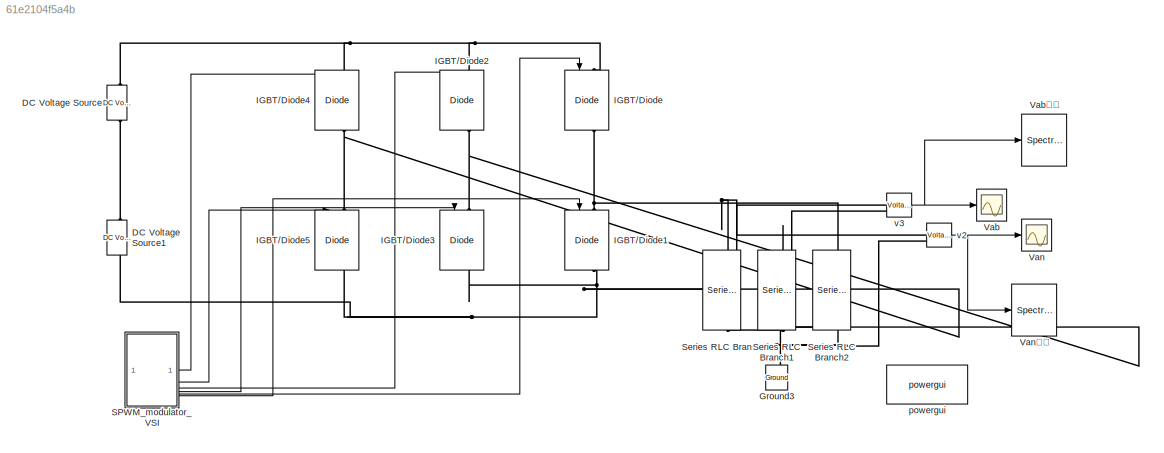
MODEL slx_61e2104f5a4b
KIND model
CONFIG AbsTol = auto
CONFIG EnableMultiTasking = off
CONFIG FixedStep = 2.5e-5
CONFIG MaxStep = auto
CONFIG MinStep = auto
CONFIG RelTol = 1e-3
CONFIG SampleTimeConstraint = Unconstrained
CONFIG SolverName = FixedStepAuto
CONFIG StartTime = 0.0
CONFIG StopTime = 0.5
BLOCK [Reference] DC Voltage Source  REF=spsDCVoltageSourceLib/DC Voltage Source
  LibrarySourceBlock = sps_lib/Sources/DC Voltage Source
  SourceBlock = spsDCVoltageSourceLib/DC Voltage Source
  SourceType = DC Voltage Source
BLOCK [Reference] DC Voltage Source1  REF=spsDCVoltageSourceLib/DC Voltage Source
  LibrarySourceBlock = sps_lib/Sources/DC Voltage Source
  SourceBlock = spsDCVoltageSourceLib/DC Voltage Source
  SourceType = DC Voltage Source
BLOCK [Reference] Ground3  REF=spsGroundLib/Ground
  LibrarySourceBlock = sps_lib/Utilities/Ground
  NameLocation = right
  SourceBlock = spsGroundLib/Ground
  SourceType = Ground
BLOCK [Reference] IGBT//Diode  REF=spsIGBTDiodeLib/IGBT//Diode
  LibrarySourceBlock = sps_lib/Power Electronics/IGBT//Diode
  NameLocation = right
  SourceBlock = spsIGBTDiodeLib/IGBT//Diode
  SourceType = IGBT/Diode
BLOCK [Reference] IGBT//Diode1  REF=spsIGBTDiodeLib/IGBT//Diode
  LibrarySourceBlock = sps_lib/Power Electronics/IGBT//Diode
  NameLocation = right
  SourceBlock = spsIGBTDiodeLib/IGBT//Diode
  SourceType = IGBT/Diode
BLOCK [Reference] IGBT//Diode2  REF=spsIGBTDiodeLib/IGBT//Diode
  LibrarySourceBlock = sps_lib/Power Electronics/IGBT//Diode
  NameLocation = right
  SourceBlock = spsIGBTDiodeLib/IGBT//Diode
  SourceType = IGBT/Diode
BLOCK [Reference] IGBT//Diode3  REF=spsIGBTDiodeLib/IGBT//Diode
  LibrarySourceBlock = sps_lib/Power Electronics/IGBT//Diode
  NameLocation = right
  SourceBlock = spsIGBTDiodeLib/IGBT//Diode
  SourceType = IGBT/Diode
BLOCK [Reference] IGBT//Diode4  REF=spsIGBTDiodeLib/IGBT//Diode
  LibrarySourceBlock = sps_lib/Power Electronics/IGBT//Diode
  NameLocation = right
  SourceBlock = spsIGBTDiodeLib/IGBT//Diode
  SourceType = IGBT/Diode
BLOCK [Reference] IGBT//Diode5  REF=spsIGBTDiodeLib/IGBT//Diode
  LibrarySourceBlock = sps_lib/Power Electronics/IGBT//Diode
  NameLocation = right
  SourceBlock = spsIGBTDiodeLib/IGBT//Diode
  SourceType = IGBT/Diode
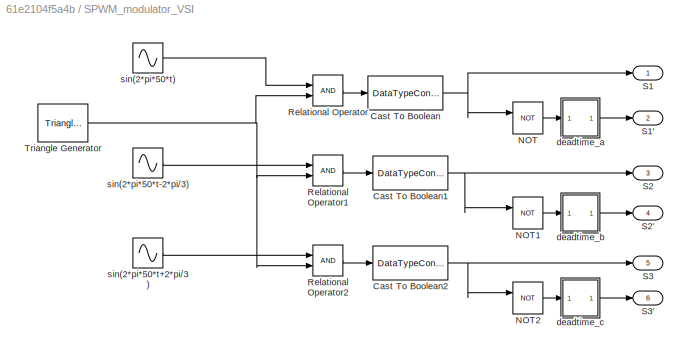
BLOCK [SubSystem] SPWM_modulator_VSI
BLOCK [DataTypeConversion] SPWM_modulator_VSI/Cast To Boolean
  OutDataTypeStr = boolean
  RndMeth = Floor
  SaturateOnIntegerOverflow = off
BLOCK [DataTypeConversion] SPWM_modulator_VSI/Cast To Boolean1
  OutDataTypeStr = boolean
  RndMeth = Floor
  SaturateOnIntegerOverflow = off
BLOCK [DataTypeConversion] SPWM_modulator_VSI/Cast To Boolean2
  OutDataTypeStr = boolean
  RndMeth = Floor
  SaturateOnIntegerOverflow = off
BLOCK [Logic] SPWM_modulator_VSI/NOT
  AllPortsSameDT = off
  IconShape = distinctive
  Operator = NOT
  OutDataTypeStr = boolean
BLOCK [Logic] SPWM_modulator_VSI/NOT1
  AllPortsSameDT = off
  IconShape = distinctive
  Operator = NOT
  OutDataTypeStr = boolean
BLOCK [Logic] SPWM_modulator_VSI/NOT2
  AllPortsSameDT = off
  IconShape = distinctive
  Operator = NOT
  OutDataTypeStr = boolean
BLOCK [RelationalOperator] SPWM_modulator_VSI/Relational Operator
  InputSameDT = off
  OutDataTypeStr = boolean
  RndMeth = Simplest
BLOCK [RelationalOperator] SPWM_modulator_VSI/Relational Operator1
  InputSameDT = off
  OutDataTypeStr = boolean
  RndMeth = Simplest
BLOCK [RelationalOperator] SPWM_modulator_VSI/Relational Operator2
  InputSameDT = off
  OutDataTypeStr = boolean
  RndMeth = Simplest
BLOCK [Outport] SPWM_modulator_VSI/S1
BLOCK [Outport] SPWM_modulator_VSI/S1'
  Port = 2
BLOCK [Outport] SPWM_modulator_VSI/S2
  Port = 3
BLOCK [Outport] SPWM_modulator_VSI/S2'
  Port = 4
BLOCK [Outport] SPWM_modulator_VSI/S3
  Port = 5
BLOCK [Outport] SPWM_modulator_VSI/S3'
  Port = 6
BLOCK [Reference] SPWM_modulator_VSI/Triangle Generator  REF=spsTriangleGeneratorLib/Triangle
Generator
  LibrarySourceBlock = sps_lib/Sources/Signal Generator Sources/Triangle\nGenerator
  SourceBlock = spsTriangleGeneratorLib/Triangle\nGenerator
  SourceType = Triangle Generator
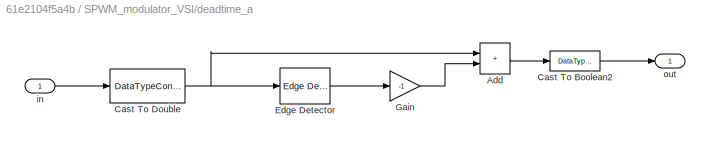
BLOCK [SubSystem] SPWM_modulator_VSI/deadtime_a
BLOCK [Sum] SPWM_modulator_VSI/deadtime_a/Add
  IconShape = rectangular
BLOCK [DataTypeConversion] SPWM_modulator_VSI/deadtime_a/Cast To Boolean2
  OutDataTypeStr = boolean
  RndMeth = Floor
  SaturateOnIntegerOverflow = off
BLOCK [DataTypeConversion] SPWM_modulator_VSI/deadtime_a/Cast To Double
  OutDataTypeStr = double
  RndMeth = Floor
  SaturateOnIntegerOverflow = off
BLOCK [Reference] SPWM_modulator_VSI/deadtime_a/Edge Detector  REF=spsEdgeDetectorLib/Edge Detector
  LibrarySourceBlock = sps_lib/Control/Edge Detector
  SourceBlock = spsEdgeDetectorLib/Edge Detector
  SourceType = Edge Detector
BLOCK [Gain] SPWM_modulator_VSI/deadtime_a/Gain
  Gain = -1
BLOCK [Inport] SPWM_modulator_VSI/deadtime_a/in
BLOCK [Outport] SPWM_modulator_VSI/deadtime_a/out
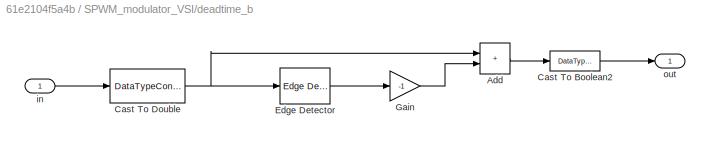
BLOCK [SubSystem] SPWM_modulator_VSI/deadtime_b
BLOCK [Sum] SPWM_modulator_VSI/deadtime_b/Add
  IconShape = rectangular
BLOCK [DataTypeConversion] SPWM_modulator_VSI/deadtime_b/Cast To Boolean2
  OutDataTypeStr = boolean
  RndMeth = Floor
  SaturateOnIntegerOverflow = off
BLOCK [DataTypeConversion] SPWM_modulator_VSI/deadtime_b/Cast To Double
  OutDataTypeStr = double
  RndMeth = Floor
  SaturateOnIntegerOverflow = off
BLOCK [Reference] SPWM_modulator_VSI/deadtime_b/Edge Detector  REF=spsEdgeDetectorLib/Edge Detector
  LibrarySourceBlock = sps_lib/Control/Edge Detector
  SourceBlock = spsEdgeDetectorLib/Edge Detector
  SourceType = Edge Detector
BLOCK [Gain] SPWM_modulator_VSI/deadtime_b/Gain
  Gain = -1
BLOCK [Inport] SPWM_modulator_VSI/deadtime_b/in
BLOCK [Outport] SPWM_modulator_VSI/deadtime_b/out
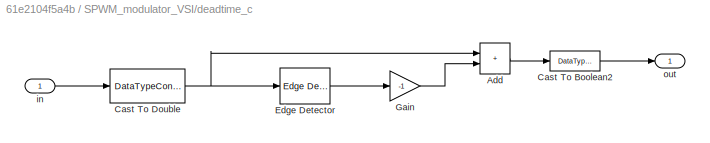
BLOCK [SubSystem] SPWM_modulator_VSI/deadtime_c
BLOCK [Sum] SPWM_modulator_VSI/deadtime_c/Add
  IconShape = rectangular
BLOCK [DataTypeConversion] SPWM_modulator_VSI/deadtime_c/Cast To Boolean2
  OutDataTypeStr = boolean
  RndMeth = Floor
  SaturateOnIntegerOverflow = off
BLOCK [DataTypeConversion] SPWM_modulator_VSI/deadtime_c/Cast To Double
  OutDataTypeStr = double
  RndMeth = Floor
  SaturateOnIntegerOverflow = off
BLOCK [Reference] SPWM_modulator_VSI/deadtime_c/Edge Detector  REF=spsEdgeDetectorLib/Edge Detector
  LibrarySourceBlock = sps_lib/Control/Edge Detector
  SourceBlock = spsEdgeDetectorLib/Edge Detector
  SourceType = Edge Detector
BLOCK [Gain] SPWM_modulator_VSI/deadtime_c/Gain
  Gain = -1
BLOCK [Inport] SPWM_modulator_VSI/deadtime_c/in
BLOCK [Outport] SPWM_modulator_VSI/deadtime_c/out
BLOCK [Sin] SPWM_modulator_VSI/sin(2*pi*50*t)
  Frequency = 2*pi*50
  SampleTime = 0
BLOCK [Sin] SPWM_modulator_VSI/sin(2*pi*50*t+2*pi//3)
  Frequency = 2*pi*50
  Phase = 2*pi/3
  SampleTime = 0
BLOCK [Sin] SPWM_modulator_VSI/sin(2*pi*50*t-2*pi//3)
  Frequency = 2*pi*50
  Phase = -2*pi/3
  SampleTime = 0
BLOCK [Reference] Series RLC Branch  REF=spsSeriesRLCBranchLib/Series RLC Branch
  LibrarySourceBlock = sps_lib/Passives/Series RLC Branch
  NameLocation = left
  SourceBlock = spsSeriesRLCBranchLib/Series RLC Branch
  SourceType = Series RLC Branch
BLOCK [Reference] Series RLC Branch1  REF=spsSeriesRLCBranchLib/Series RLC Branch
  LibrarySourceBlock = sps_lib/Passives/Series RLC Branch
  NameLocation = left
  SourceBlock = spsSeriesRLCBranchLib/Series RLC Branch
  SourceType = Series RLC Branch
BLOCK [Reference] Series RLC Branch2  REF=spsSeriesRLCBranchLib/Series RLC Branch
  LibrarySourceBlock = sps_lib/Passives/Series RLC Branch
  NameLocation = left
  SourceBlock = spsSeriesRLCBranchLib/Series RLC Branch
  SourceType = Series RLC Branch
BLOCK [Scope] Vab
  Floating = off
  NumInputPorts = 1
  ScopeSpecificationString = Simulink.scopes.TimeScopeBlockCfg('CurrentConfiguration', extmgr.ConfigurationSet(extmgr.Configuration('Core','General UI',true,'FigureColor',[1 1 1]),extmgr.Configuration('Core','Source UI',true),extmgr.Configuration('Sources','WiredSimulink',true,'DataLoggingVariableName','ScopeData3','DataLoggingSaveFormat','StructureWithTime'),extmgr.Configuration('Visuals','Time Domain',true,'SerializedDispla...<+1615ch>
BLOCK [SpectrumAnalyzer] Vab頻譜
  ScopeSpecificationString = spbscopes.SpectrumAnalyzerBlockCfg('CurrentConfiguration', extmgr.ConfigurationSet(extmgr.Configuration('Core','General UI',true,'FigureColor',[1 1 1]),extmgr.Configuration('Core','Source UI',true),extmgr.Configuration('Sources','WiredSimulink',true),extmgr.Configuration('Visuals','Spectrum',true,'AxesProperties',struct('Color',{[1 1 1],[1 1 1]},'XColor',{[0 0 0],[0 0 0]},'YColor',{[0 0 0],[0 0 0]...<+1925ch>
BLOCK [Scope] Van
  Floating = off
  NumInputPorts = 1
  ScopeSpecificationString = Simulink.scopes.TimeScopeBlockCfg('CurrentConfiguration', extmgr.ConfigurationSet(extmgr.Configuration('Core','General UI',true,'FigureColor',[1 1 1]),extmgr.Configuration('Core','Source UI',true),extmgr.Configuration('Sources','WiredSimulink',true,'DataLoggingVariableName','van','DataLoggingSaveFormat','StructureWithTime'),extmgr.Configuration('Visuals','Time Domain',true,'SerializedDisplays',{st...<+1608ch>
BLOCK [SpectrumAnalyzer] Van頻譜
  ScopeSpecificationString = spbscopes.SpectrumAnalyzerBlockCfg('CurrentConfiguration', extmgr.ConfigurationSet(extmgr.Configuration('Core','General UI',true,'FigureColor',[1 1 1]),extmgr.Configuration('Core','Source UI',true),extmgr.Configuration('Sources','WiredSimulink',true),extmgr.Configuration('Visuals','Spectrum',true,'AxesProperties',struct('Color',{[1 1 1],[1 1 1]},'XColor',{[0 0 0],[0 0 0]},'YColor',{[0 0 0],[0 0 0]...<+1928ch>
BLOCK [Reference] powergui  REF=spspowerguiLib/powergui
  Priority = 1
  SourceBlock = spspowerguiLib/powergui
  SourceType = PSB option menu block
BLOCK [Reference] v2  REF=spsVoltageMeasurementLib/Voltage Measurement
  LibrarySourceBlock = sps_lib/Sensors and Measurements/Voltage Measurement
  SourceBlock = spsVoltageMeasurementLib/Voltage Measurement
  SourceType = Voltage Measurement
  UserDataPersistent = on
BLOCK [Reference] v3  REF=spsVoltageMeasurementLib/Voltage Measurement
  LibrarySourceBlock = sps_lib/Sensors and Measurements/Voltage Measurement
  SourceBlock = spsVoltageMeasurementLib/Voltage Measurement
  SourceType = Voltage Measurement
  UserDataPersistent = on
NET SPWM_modulator_VSI/Cast To Boolean1:1 -> SPWM_modulator_VSI/NOT1:1, SPWM_modulator_VSI/S2:1
NET SPWM_modulator_VSI/Cast To Boolean2:1 -> SPWM_modulator_VSI/NOT2:1, SPWM_modulator_VSI/S3:1
NET SPWM_modulator_VSI/Cast To Boolean:1 -> SPWM_modulator_VSI/NOT:1, SPWM_modulator_VSI/S1:1
LINE SPWM_modulator_VSI/NOT1:1 -> SPWM_modulator_VSI/deadtime_b:1
LINE SPWM_modulator_VSI/NOT2:1 -> SPWM_modulator_VSI/deadtime_c:1
LINE SPWM_modulator_VSI/NOT:1 -> SPWM_modulator_VSI/deadtime_a:1
LINE SPWM_modulator_VSI/Relational Operator1:1 -> SPWM_modulator_VSI/Cast To Boolean1:1
LINE SPWM_modulator_VSI/Relational Operator2:1 -> SPWM_modulator_VSI/Cast To Boolean2:1
LINE SPWM_modulator_VSI/Relational Operator:1 -> SPWM_modulator_VSI/Cast To Boolean:1
NET SPWM_modulator_VSI/Triangle Generator:1 -> SPWM_modulator_VSI/Relational Operator1:2, SPWM_modulator_VSI/Relational Operator2:2, SPWM_modulator_VSI/Relational Operator:2
LINE SPWM_modulator_VSI/deadtime_a/Add:1 -> SPWM_modulator_VSI/deadtime_a/Cast To Boolean2:1
LINE SPWM_modulator_VSI/deadtime_a/Cast To Boolean2:1 -> SPWM_modulator_VSI/deadtime_a/out:1
NET SPWM_modulator_VSI/deadtime_a/Cast To Double:1 -> SPWM_modulator_VSI/deadtime_a/Add:1, SPWM_modulator_VSI/deadtime_a/Edge Detector:1
LINE SPWM_modulator_VSI/deadtime_a/Edge Detector:1 -> SPWM_modulator_VSI/deadtime_a/Gain:1
LINE SPWM_modulator_VSI/deadtime_a/Gain:1 -> SPWM_modulator_VSI/deadtime_a/Add:2
LINE SPWM_modulator_VSI/deadtime_a/in:1 -> SPWM_modulator_VSI/deadtime_a/Cast To Double:1
LINE SPWM_modulator_VSI/deadtime_a:1 -> SPWM_modulator_VSI/S1':1
LINE SPWM_modulator_VSI/deadtime_b/Add:1 -> SPWM_modulator_VSI/deadtime_b/Cast To Boolean2:1
LINE SPWM_modulator_VSI/deadtime_b/Cast To Boolean2:1 -> SPWM_modulator_VSI/deadtime_b/out:1
NET SPWM_modulator_VSI/deadtime_b/Cast To Double:1 -> SPWM_modulator_VSI/deadtime_b/Add:1, SPWM_modulator_VSI/deadtime_b/Edge Detector:1
LINE SPWM_modulator_VSI/deadtime_b/Edge Detector:1 -> SPWM_modulator_VSI/deadtime_b/Gain:1
LINE SPWM_modulator_VSI/deadtime_b/Gain:1 -> SPWM_modulator_VSI/deadtime_b/Add:2
LINE SPWM_modulator_VSI/deadtime_b/in:1 -> SPWM_modulator_VSI/deadtime_b/Cast To Double:1
LINE SPWM_modulator_VSI/deadtime_b:1 -> SPWM_modulator_VSI/S2':1
LINE SPWM_modulator_VSI/deadtime_c/Add:1 -> SPWM_modulator_VSI/deadtime_c/Cast To Boolean2:1
LINE SPWM_modulator_VSI/deadtime_c/Cast To Boolean2:1 -> SPWM_modulator_VSI/deadtime_c/out:1
NET SPWM_modulator_VSI/deadtime_c/Cast To Double:1 -> SPWM_modulator_VSI/deadtime_c/Add:1, SPWM_modulator_VSI/deadtime_c/Edge Detector:1
LINE SPWM_modulator_VSI/deadtime_c/Edge Detector:1 -> SPWM_modulator_VSI/deadtime_c/Gain:1
LINE SPWM_modulator_VSI/deadtime_c/Gain:1 -> SPWM_modulator_VSI/deadtime_c/Add:2
LINE SPWM_modulator_VSI/deadtime_c/in:1 -> SPWM_modulator_VSI/deadtime_c/Cast To Double:1
LINE SPWM_modulator_VSI/deadtime_c:1 -> SPWM_modulator_VSI/S3':1
LINE SPWM_modulator_VSI/sin(2*pi*50*t):1 -> SPWM_modulator_VSI/Relational Operator:1
LINE SPWM_modulator_VSI/sin(2*pi*50*t+2*pi//3):1 -> SPWM_modulator_VSI/Relational Operator2:1
LINE SPWM_modulator_VSI/sin(2*pi*50*t-2*pi//3):1 -> SPWM_modulator_VSI/Relational Operator1:1
LINE SPWM_modulator_VSI:1 -> IGBT//Diode4:1
LINE SPWM_modulator_VSI:2 -> IGBT//Diode5:1
LINE SPWM_modulator_VSI:3 -> IGBT//Diode2:1
LINE SPWM_modulator_VSI:4 -> IGBT//Diode3:1
LINE SPWM_modulator_VSI:5 -> IGBT//Diode:1
LINE SPWM_modulator_VSI:6 -> IGBT//Diode1:1
NET v2:1 -> Van:1, Van頻譜:1
NET v3:1 -> Vab:1, Vab頻譜:1
PNET net1: DC Voltage Source1:LConn1 -- IGBT//Diode1:RConn1 -- IGBT//Diode3:RConn1 -- IGBT//Diode5:RConn1
PLINE DC Voltage Source1:RConn1 -- DC Voltage Source:LConn1
PNET net2: DC Voltage Source:RConn1 -- IGBT//Diode2:LConn1 -- IGBT//Diode4:LConn1 -- IGBT//Diode:LConn1
PNET net3: Ground3:LConn1 -- Series RLC Branch1:RConn1 -- Series RLC Branch2:RConn1 -- Series RLC Branch:RConn1 -- v2:LConn2
PNET net4: IGBT//Diode1:LConn1 -- IGBT//Diode:RConn1 -- Series RLC Branch2:LConn1
PNET net5: IGBT//Diode2:RConn1 -- IGBT//Diode3:LConn1 -- Series RLC Branch1:LConn1 -- v3:LConn2
PNET net6: IGBT//Diode4:RConn1 -- IGBT//Diode5:LConn1 -- Series RLC Branch:LConn1 -- v2:LConn1 -- v3:LConn1
note: NET lines group one-source signal fan-out (src -> all destinations, sorted); 1:1 wires keep LINE; PNET lines group multi-terminal physical nets as a canonical sorted terminal list (undirected conserving connections); 2-terminal nets keep the pairwise PLINE form
